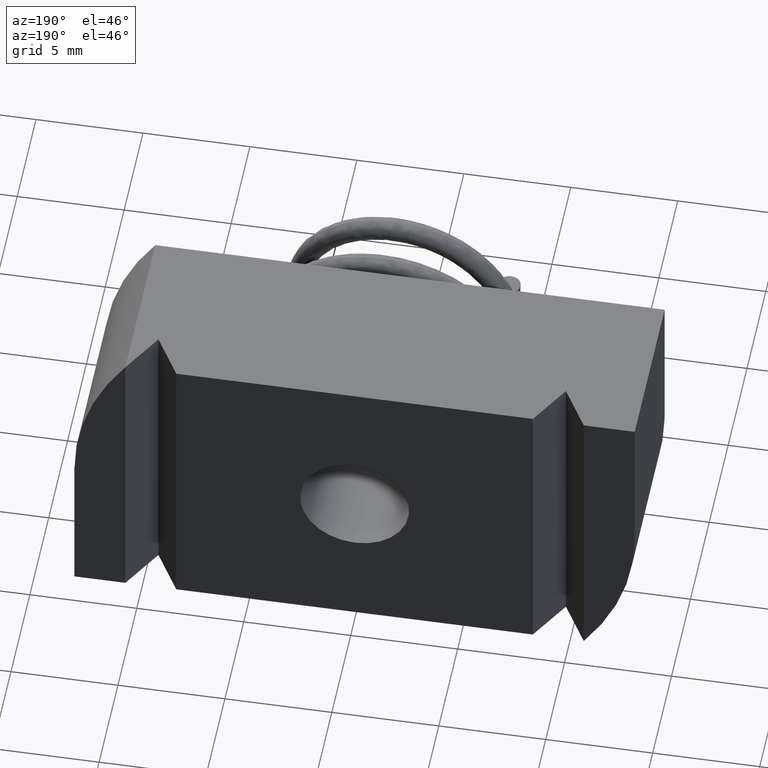
[diagram: clean part render]
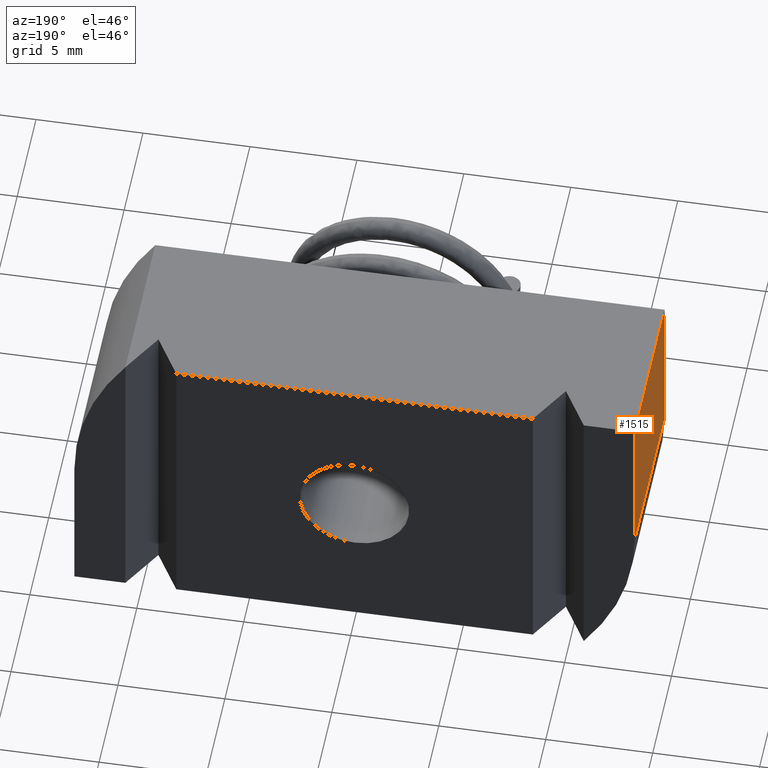
[diagram: same view with one face highlighted and labeled with its STEP entity id]
A machine part, auxiliary view. The second image highlights one B-rep face of the part: STEP entity #1515.
In plain terms, the highlighted planar face has unit normal (1, -0, 0).
Its self-contained STEP definition (entity closure, byte-faithful):
#7 = DIRECTION ( 'NONE',  ( -0.0000000000000000000, 1.000000000000000000, -0.0000000000000000000 ) ) ;
#35 = CARTESIAN_POINT ( 'NONE',  ( -0.5156250000000000000, 0.1562500000000000000, 0.2812500000000000000 ) ) ;
#45 = DIRECTION ( 'NONE',  ( -0.0000000000000000000, -0.0000000000000000000, 1.000000000000000000 ) ) ;
#78 = CARTESIAN_POINT ( 'NONE',  ( -0.5156250000000000000, 0.1562500000000000000, 0.2812500000000000000 ) ) ;
#81 = CARTESIAN_POINT ( 'NONE',  ( -0.5156250000000000000, -0.1562500000000000000, 0.0000000000000000000 ) ) ;
#82 = CARTESIAN_POINT ( 'NONE',  ( -0.5156250000000000000, -0.1562500000000000000, 0.2812500000000000000 ) ) ;
#91 = CARTESIAN_POINT ( 'NONE',  ( -0.5156250000000000000, 0.1562500000000000000, 0.0000000000000000000 ) ) ;
#96 = CARTESIAN_POINT ( 'NONE',  ( -0.5156250000000000000, 0.1562500000000000000, 0.2812500000000000000 ) ) ;
#97 = PLANE ( 'NONE',  #955 ) ;
#101 = DIRECTION ( 'NONE',  ( 1.000000000000000000, -0.0000000000000000000, 0.0000000000000000000 ) ) ;
#102 = DIRECTION ( 'NONE',  ( 0.0000000000000000000, 0.0000000000000000000, -1.000000000000000000 ) ) ;
#730 = CARTESIAN_POINT ( 'NONE',  ( -0.5156250000000000000, -0.1562500000000000000, 0.2812500000000000000 ) ) ;
#731 = DIRECTION ( 'NONE',  ( -0.0000000000000000000, -0.0000000000000000000, 1.000000000000000000 ) ) ;
#790 = ORIENTED_EDGE ( 'NONE', *, *, #1362, .F. ) ;
#792 = ORIENTED_EDGE ( 'NONE', *, *, #946, .F. ) ;
#793 = EDGE_LOOP ( 'NONE', ( #790, #795, #796, #792 ) ) ;
#795 = ORIENTED_EDGE ( 'NONE', *, *, #1374, .F. ) ;
#796 = ORIENTED_EDGE ( 'NONE', *, *, #1591, .T. ) ;
#854 = LINE ( 'NONE', #1629, #855 ) ;
#855 = VECTOR ( 'NONE', #7, 39.37007874015748100 ) ;
#885 = FACE_OUTER_BOUND ( 'NONE', #793, .T. ) ;
#946 = EDGE_CURVE ( 'NONE', #1447, #1465, #1642, .T. ) ;
#955 = AXIS2_PLACEMENT_3D ( 'NONE', #96, #101, #102 ) ;
#1362 = EDGE_CURVE ( 'NONE', #1485, #1447, #1573, .T. ) ;
#1374 = EDGE_CURVE ( 'NONE', #1451, #1485, #854, .T. ) ;
#1407 = CARTESIAN_POINT ( 'NONE',  ( -0.5156250000000000000, 0.1562500000000000000, 0.2812500000000000000 ) ) ;
#1447 = VERTEX_POINT ( 'NONE', #78 ) ;
#1451 = VERTEX_POINT ( 'NONE', #81 ) ;
#1465 = VERTEX_POINT ( 'NONE', #82 ) ;
#1485 = VERTEX_POINT ( 'NONE', #91 ) ;
#1494 = DIRECTION ( 'NONE',  ( -0.0000000000000000000, -1.000000000000000000, -0.0000000000000000000 ) ) ;
#1515 = ADVANCED_FACE ( 'NONE', ( #885 ), #97, .F. ) ;
#1569 = VECTOR ( 'NONE', #1494, 39.37007874015748100 ) ;
#1573 = LINE ( 'NONE', #35, #1638 ) ;
#1591 = EDGE_CURVE ( 'NONE', #1451, #1465, #1617, .T. ) ;
#1609 = VECTOR ( 'NONE', #731, 39.37007874015748100 ) ;
#1617 = LINE ( 'NONE', #730, #1609 ) ;
#1629 = CARTESIAN_POINT ( 'NONE',  ( -0.5156250000000000000, -0.1562500000000000000, 0.0000000000000000000 ) ) ;
#1638 = VECTOR ( 'NONE', #45, 39.37007874015748100 ) ;
#1642 = LINE ( 'NONE', #1407, #1569 ) ;